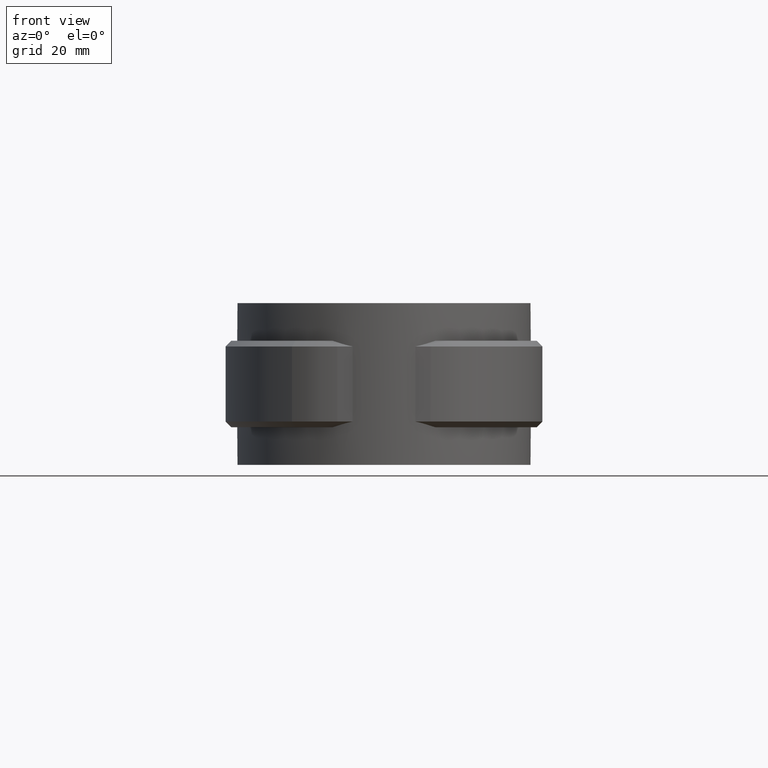
[diagram: clean part render]
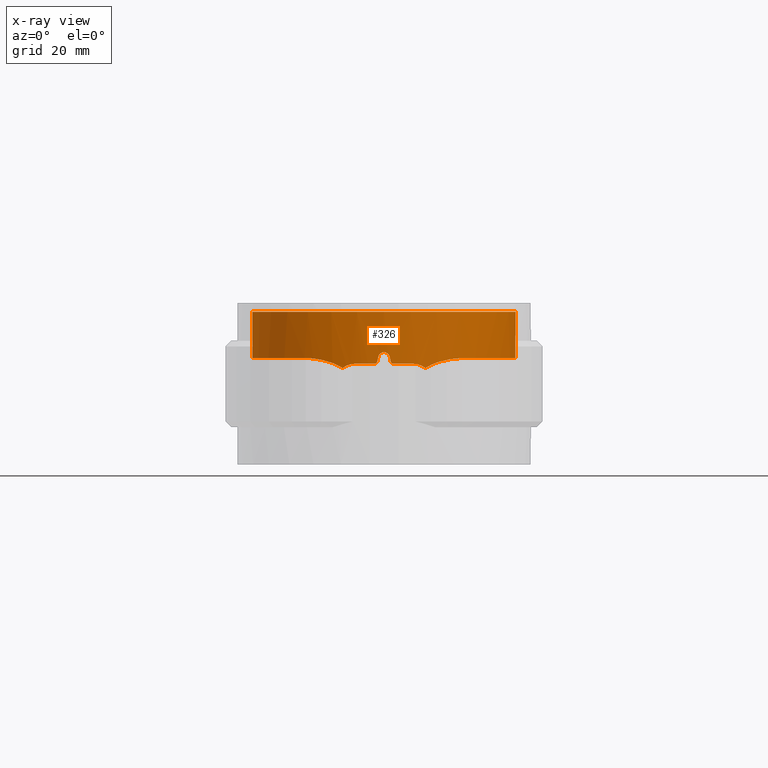
[diagram: x-ray — body ghosted, one internal face saturated and labeled with its STEP entity id]
A machine part, front view, then the same camera in x-ray: the body is ghosted and one INTERNAL B-rep face — a face not visible from any outside direction — is saturated and labeled: STEP entity #326.
In plain terms, the highlighted cylindrical surface (partial cylindrical patch) has radius 22.85 mm, axis along (0, 0, 1).
Its self-contained STEP definition (entity closure, byte-faithful):
#326 = ADVANCED_FACE( '', ( #566 ), #567, .F. );
#566 = FACE_OUTER_BOUND( '', #1260, .T. );
#567 = CYLINDRICAL_SURFACE( '', #1261, 22.8500000000000 );
#1260 = EDGE_LOOP( '', ( #2254, #2255, #2256, #2257, #2258, #2259, #2260, #2261, #2262, #2263, #2264, #2265, #2266, #2267, #2268, #2269 ) );
#1261 = AXIS2_PLACEMENT_3D( '', #2270, #2271, #2272 );
#2254 = ORIENTED_EDGE( '', *, *, #5250, .T. );
#2255 = ORIENTED_EDGE( '', *, *, #5219, .T. );
#2256 = ORIENTED_EDGE( '', *, *, #5223, .T. );
#2257 = ORIENTED_EDGE( '', *, *, #5254, .T. );
#2258 = ORIENTED_EDGE( '', *, *, #5255, .T. );
#2259 = ORIENTED_EDGE( '', *, *, #5256, .T. );
#2260 = ORIENTED_EDGE( '', *, *, #5257, .T. );
#2261 = ORIENTED_EDGE( '', *, *, #5258, .T. );
#2262 = ORIENTED_EDGE( '', *, *, #5259, .T. );
#2263 = ORIENTED_EDGE( '', *, *, #5260, .T. );
#2264 = ORIENTED_EDGE( '', *, *, #5251, .T. );
#2265 = ORIENTED_EDGE( '', *, *, #5243, .T. );
#2266 = ORIENTED_EDGE( '', *, *, #5261, .F. );
#2267 = ORIENTED_EDGE( '', *, *, #5210, .T. );
#2268 = ORIENTED_EDGE( '', *, *, #5262, .T. );
#2269 = ORIENTED_EDGE( '', *, *, #5239, .T. );
#2270 = CARTESIAN_POINT( '', ( 0.000000000000000, 0.000000000000000, 0.000000000000000 ) );
#2271 = DIRECTION( '', ( 0.000000000000000, 0.000000000000000, 1.00000000000000 ) );
#2272 = DIRECTION( '', ( 1.00000000000000, -6.12303176911189E-017, 0.000000000000000 ) );
#5210 = EDGE_CURVE( '', #5875, #5873, #5876, .T. );
#5219 = EDGE_CURVE( '', #5892, #5890, #5893, .T. );
#5223 = EDGE_CURVE( '', #5890, #5897, #5899, .T. );
#5239 = EDGE_CURVE( '', #5927, #5925, #5928, .T. );
#5243 = EDGE_CURVE( '', #5934, #5935, #5936, .T. );
#5250 = EDGE_CURVE( '', #5925, #5892, #5947, .T. );
#5251 = EDGE_CURVE( '', #5948, #5934, #5949, .T. );
#5254 = EDGE_CURVE( '', #5897, #5953, #5954, .T. );
#5255 = EDGE_CURVE( '', #5953, #5955, #5956, .T. );
#5256 = EDGE_CURVE( '', #5955, #5957, #5958, .T. );
#5257 = EDGE_CURVE( '', #5957, #5959, #5960, .T. );
#5258 = EDGE_CURVE( '', #5959, #5961, #5962, .T. );
#5259 = EDGE_CURVE( '', #5961, #5963, #5964, .T. );
#5260 = EDGE_CURVE( '', #5963, #5948, #5965, .T. );
#5261 = EDGE_CURVE( '', #5875, #5935, #5966, .T. );
#5262 = EDGE_CURVE( '', #5873, #5927, #5967, .T. );
#5873 = VERTEX_POINT( '', #7091 );
#5875 = VERTEX_POINT( '', #7093 );
#5876 = CIRCLE( '', #7094, 22.8500000000000 );
#5890 = VERTEX_POINT( '', #7138 );
#5892 = VERTEX_POINT( '', #7141 );
#5893 = B_SPLINE_CURVE_WITH_KNOTS( '', 3, ( #7142, #7143, #7144, #7145, #7146, #7147, #7148, #7149, #7150, #7151 ), .UNSPECIFIED., .F., .F., ( 4, 2, 2, 2, 4 ), ( 0.00877637653112455, 0.00937660491941818, 0.00997683330771180, 0.0105770616960054, 0.0111772900842991 ), .UNSPECIFIED. );
#5897 = VERTEX_POINT( '', #7177 );
#5899 = CIRCLE( '', #7180, 22.8500000000000 );
#5925 = VERTEX_POINT( '', #7444 );
#5927 = VERTEX_POINT( '', #7452 );
#5928 = B_SPLINE_CURVE_WITH_KNOTS( '', 3, ( #7453, #7454, #7455, #7456, #7457, #7458, #7459, #7460, #7461, #7462, #7463, #7464, #7465, #7466, #7467, #7468, #7469, #7470, #7471, #7472, #7473, #7474, #7475, #7476, #7477, #7478, #7479, #7480, #7481, #7482, #7483, #7484, #7485, #7486, #7487, #7488, #7489, #7490, #7491, #7492, #7493, #7494, #7495, #7496 ), .UNSPECIFIED., .F., .F., ( 4, 2, 2, 2, 2, 2, 2, 2, 2, 2, 2, 2, 2, 2, 2, 2, 2, 2, 2, 2, 2, 4 ), ( 9.34177181294034E-018, 0.00317004307811015, 0.00634008615622028, 0.00792510769527535, 0.00951012923433041, 0.0126801723124406, 0.0142651938514956, 0.0158502153905507, 0.0190202584686608, 0.0221903015467709, 0.0237753230858260, 0.0253603446248811, 0.0285303877029912, 0.0301154092420462, 0.0317004307811013, 0.0348704738592114, 0.0380405169373215, 0.0396255384763766, 0.0412105600154317, 0.0443806030935418, 0.0475506461716519, 0.0507206892497621 ), .UNSPECIFIED. );
#5934 = VERTEX_POINT( '', #7532 );
#5935 = VERTEX_POINT( '', #7533 );
#5936 = B_SPLINE_CURVE_WITH_KNOTS( '', 3, ( #7534, #7535, #7536, #7537, #7538, #7539, #7540, #7541, #7542, #7543, #7544, #7545, #7546, #7547, #7548, #7549, #7550, #7551, #7552, #7553, #7554, #7555, #7556, #7557, #7558, #7559, #7560, #7561, #7562, #7563, #7564, #7565, #7566, #7567, #7568, #7569, #7570, #7571, #7572, #7573, #7574, #7575, #7576, #7577 ), .UNSPECIFIED., .F., .F., ( 4, 2, 2, 2, 2, 2, 2, 2, 2, 2, 2, 2, 2, 2, 2, 2, 2, 2, 2, 2, 2, 4 ), ( 9.81307786677359E-018, 0.00317004304630908, 0.00634008609261816, 0.00792510761577270, 0.00951012913892724, 0.0126801721852363, 0.0142651937083909, 0.0158502152315454, 0.0190202582778545, 0.0221903013241636, 0.0237753228473181, 0.0253603443704726, 0.0285303874167817, 0.0301154089399363, 0.0317004304630908, 0.0348704735093999, 0.0380405165557090, 0.0396255380788635, 0.0412105596020181, 0.0443806026483272, 0.0475506456946363, 0.0507206887409454 ), .UNSPECIFIED. );
#5947 = B_SPLINE_CURVE_WITH_KNOTS( '', 3, ( #7676, #7677, #7678, #7679, #7680, #7681, #7682, #7683, #7684, #7685 ), .UNSPECIFIED., .F., .F., ( 4, 2, 2, 2, 4 ), ( 4.90653893338680E-018, 0.00193685903663415, 0.00387371807326829, 0.00581057710990243, 0.00774743614653657 ), .UNSPECIFIED. );
#5948 = VERTEX_POINT( '', #7686 );
#5949 = B_SPLINE_CURVE_WITH_KNOTS( '', 3, ( #7687, #7688, #7689, #7690, #7691, #7692, #7693, #7694, #7695, #7696 ), .UNSPECIFIED., .F., .F., ( 4, 2, 2, 2, 4 ), ( 1.22770241732585E-005, 0.00193683946452196, 0.00386140190487065, 0.00578596434521935, 0.00771052678556805 ), .UNSPECIFIED. );
#5953 = VERTEX_POINT( '', #7726 );
#5954 = B_SPLINE_CURVE_WITH_KNOTS( '', 3, ( #7727, #7728, #7729, #7730, #7731, #7732 ), .UNSPECIFIED., .F., .F., ( 4, 2, 4 ), ( 8.20849171219253E-018, 0.000336159592444283, 0.000672319184888557 ), .UNSPECIFIED. );
#5955 = VERTEX_POINT( '', #7733 );
#5956 = ELLIPSE( '', #7734, 104.094497545428, 22.8500000000000 );
#5957 = VERTEX_POINT( '', #7735 );
#5958 = B_SPLINE_CURVE_WITH_KNOTS( '', 3, ( #7736, #7737, #7738, #7739, #7740, #7741, #7742, #7743, #7744, #7745 ), .UNSPECIFIED., .F., .F., ( 4, 2, 2, 2, 4 ), ( 0.000000000000000, 0.000671637327123140, 0.00134327465424628, 0.00201491198136942, 0.00268654930849256 ), .UNSPECIFIED. );
#5959 = VERTEX_POINT( '', #7746 );
#5960 = ELLIPSE( '', #7747, 104.094550646447, 22.8500000000000 );
#5961 = VERTEX_POINT( '', #7748 );
#5962 = B_SPLINE_CURVE_WITH_KNOTS( '', 3, ( #7749, #7750, #7751, #7752, #7753, #7754 ), .UNSPECIFIED., .F., .F., ( 4, 2, 4 ), ( 4.33680868994202E-019, 0.000336166991338131, 0.000672333982676262 ), .UNSPECIFIED. );
#5963 = VERTEX_POINT( '', #7755 );
#5964 = CIRCLE( '', #7756, 22.8500000000000 );
#5965 = B_SPLINE_CURVE_WITH_KNOTS( '', 3, ( #7757, #7758, #7759, #7760, #7761, #7762 ), .UNSPECIFIED., .F., .F., ( 4, 2, 4 ), ( 3.46944695195361E-018, 0.00120286822902714, 0.00240573645805427 ), .UNSPECIFIED. );
#5966 = LINE( '', #7763, #7764 );
#5967 = LINE( '', #7765, #7766 );
#7091 = CARTESIAN_POINT( '', ( 5.97686116700199, 22.0544696284083, 0.000000000000000 ) );
#7093 = CARTESIAN_POINT( '', ( -5.97686116700201, 22.0544696284083, 0.000000000000000 ) );
#7094 = AXIS2_PLACEMENT_3D( '', #10862, #10863, #10864 );
#7138 = CARTESIAN_POINT( '', ( 5.00000000000000, -22.2962440783196, -9.00000000000000 ) );
#7141 = CARTESIAN_POINT( '', ( 7.17024469518741, -21.6958542355708, -9.75408704380942 ) );
#7142 = CARTESIAN_POINT( '', ( 7.17024469519022, -21.6958542355699, -9.75408704380517 ) );
#7143 = CARTESIAN_POINT( '', ( 7.01796001824560, -21.7461826709090, -9.63372816223457 ) );
#7144 = CARTESIAN_POINT( '', ( 6.85645411589327, -21.7977869176170, -9.52650941623306 ) );
#7145 = CARTESIAN_POINT( '', ( 6.51445896775813, -21.9024268497027, -9.33859490556102 ) );
#7146 = CARTESIAN_POINT( '', ( 6.33514685373399, -21.9550557524283, -9.25887470472623 ) );
#7147 = CARTESIAN_POINT( '', ( 5.96938883735207, -22.0573107077700, -9.13135107458249 ) );
#7148 = CARTESIAN_POINT( '', ( 5.78162313718466, -22.1073494578542, -9.08278654924921 ) );
#7149 = CARTESIAN_POINT( '', ( 5.39588101789661, -22.2046511837682, -9.01696099415415 ) );
#7150 = CARTESIAN_POINT( '', ( 5.19812709409454, -22.2518134797401, -8.99999999999996 ) );
#7151 = CARTESIAN_POINT( '', ( 5.00000000000000, -22.2962440783196, -8.99999999999996 ) );
#7177 = CARTESIAN_POINT( '', ( 1.64999999999995, -22.7903488345396, -9.00000000000000 ) );
#7180 = AXIS2_PLACEMENT_3D( '', #10872, #10873, #10874 );
#7444 = CARTESIAN_POINT( '', ( 13.7451875260167, -18.2535563623815, -7.99627160259138 ) );
#7452 = CARTESIAN_POINT( '', ( 5.97686116700199, 22.0544696284083, -7.99806293628719 ) );
#7453 = CARTESIAN_POINT( '', ( 5.97686116700198, 22.0544696284083, -7.99806293628720 ) );
#7454 = CARTESIAN_POINT( '', ( 7.01143548196948, 21.7740953028547, -7.99988755278500 ) );
#7455 = CARTESIAN_POINT( '', ( 8.01404762350000, 21.4246368353252, -8.00230956324210 ) );
#7456 = CARTESIAN_POINT( '', ( 9.95795472894794, 20.5931823779988, -8.00493905481669 ) );
#7457 = CARTESIAN_POINT( '', ( 10.8992422127147, 20.1111702307964, -8.00515454280294 ) );
#7458 = CARTESIAN_POINT( '', ( 12.2643926408483, 19.2870347738313, -8.00363431056714 ) );
#7459 = CARTESIAN_POINT( '', ( 12.7128878064341, 18.9945035227543, -8.00284112949908 ) );
#7460 = CARTESIAN_POINT( '', ( 13.5878610445616, 18.3787571040207, -8.00096519471322 ) );
#7461 = CARTESIAN_POINT( '', ( 14.0121140876056, 18.0572548725910, -7.99989040825878 ) );
#7462 = CARTESIAN_POINT( '', ( 15.2461850436421, 17.0529035816828, -7.99695436852238 ) );
#7463 = CARTESIAN_POINT( '', ( 16.0174960287352, 16.3303963988733, -7.99576079257590 ) );
#7464 = CARTESIAN_POINT( '', ( 17.0979388525817, 15.1678234558254, -7.99686273755623 ) );
#7465 = CARTESIAN_POINT( '', ( 17.4452867950226, 14.7671167835252, -7.99752471479612 ) );
#7466 = CARTESIAN_POINT( '', ( 18.1139169837869, 13.9388586678873, -7.99893911913194 ) );
#7467 = CARTESIAN_POINT( '', ( 18.4363869040529, 13.5095277098120, -7.99969322085147 ) );
#7468 = CARTESIAN_POINT( '', ( 19.3528943041518, 12.1954412025470, -8.00152579516512 ) );
#7469 = CARTESIAN_POINT( '', ( 19.8965015602484, 11.2857590722033, -8.00208610889800 ) );
#7470 = CARTESIAN_POINT( '', ( 20.8531823110764, 9.40127223697904, -8.00120365913698 ) );
#7471 = CARTESIAN_POINT( '', ( 21.2662520276613, 8.42646564670237, -7.99976228330781 ) );
#7472 = CARTESIAN_POINT( '', ( 21.7853527964981, 6.91411441776019, -7.99764423764790 ) );
#7473 = CARTESIAN_POINT( '', ( 21.9419239672955, 6.39990400198893, -7.99696693858724 ) );
#7474 = CARTESIAN_POINT( '', ( 22.2165583847864, 5.36948155380272, -7.99620273547804 ) );
#7475 = CARTESIAN_POINT( '', ( 22.3352128396471, 4.85191773757434, -7.99618901026058 ) );
#7476 = CARTESIAN_POINT( '', ( 22.6363537652718, 3.29231552430282, -7.99730974496167 ) );
#7477 = CARTESIAN_POINT( '', ( 22.7642766476596, 2.24339873368634, -7.99919040340763 ) );
#7478 = CARTESIAN_POINT( '', ( 22.8467180456463, 0.656225445339572, -8.00111405153713 ) );
#7479 = CARTESIAN_POINT( '', ( 22.8558934501877, 0.124859869719751, -8.00162434645790 ) );
#7480 = CARTESIAN_POINT( '', ( 22.8367899002396, -0.942593467893984, -8.00218138229479 ) );
#7481 = CARTESIAN_POINT( '', ( 22.8082982044997, -1.47902190764850, -8.00222512101892 ) );
#7482 = CARTESIAN_POINT( '', ( 22.6678380924190, -3.07009891870487, -8.00163221456186 ) );
#7483 = CARTESIAN_POINT( '', ( 22.5012258872981, -4.11511386099823, -8.00020197076186 ) );
#7484 = CARTESIAN_POINT( '', ( 22.0253389225093, -6.17444522761301, -7.99725528632869 ) );
#7485 = CARTESIAN_POINT( '', ( 21.7160731843294, -7.18876363629054, -7.99579791686863 ) );
#7486 = CARTESIAN_POINT( '', ( 21.1413121594365, -8.68638788384819, -7.99671454935107 ) );
#7487 = CARTESIAN_POINT( '', ( 20.9317676009025, -9.17966926231613, -7.99743481233078 ) );
#7488 = CARTESIAN_POINT( '', ( 20.4821229394220, -10.1433654453592, -7.99905703644062 ) );
#7489 = CARTESIAN_POINT( '', ( 20.2413902491186, -10.6154738524167, -7.99996020726915 ) );
#7490 = CARTESIAN_POINT( '', ( 19.4722333125456, -12.0030532422216, -8.00228544469425 ) );
#7491 = CARTESIAN_POINT( '', ( 18.8970748792681, -12.8899160043015, -8.00322899268585 ) );
#7492 = CARTESIAN_POINT( '', ( 17.6206061025088, -14.5864188261150, -8.00266976111400 ) );
#7493 = CARTESIAN_POINT( '', ( 16.9148082427623, -15.3996729535128, -8.00114093309447 ) );
#7494 = CARTESIAN_POINT( '', ( 15.4063552298102, -16.9087221130833, -7.99769043588948 ) );
#7495 = CARTESIAN_POINT( '', ( 14.6014655284411, -17.6087668493645, -7.99577809227568 ) );
#7496 = CARTESIAN_POINT( '', ( 13.7451875260167, -18.2535563623814, -7.99627160259135 ) );
#7532 = CARTESIAN_POINT( '', ( -13.7451875260167, -18.2535563623815, -7.99627160259138 ) );
#7533 = CARTESIAN_POINT( '', ( -5.97686116700199, 22.0544696284083, -7.99806293628720 ) );
#7534 = CARTESIAN_POINT( '', ( -13.7451875260167, -18.2535563623815, -7.99627160259142 ) );
#7535 = CARTESIAN_POINT( '', ( -14.6014626590747, -17.6087690100383, -7.99577809392949 ) );
#7536 = CARTESIAN_POINT( '', ( -15.4023885782134, -16.9117251612029, -7.99768192258079 ) );
#7537 = CARTESIAN_POINT( '', ( -16.8980576635274, -15.4173820424365, -8.00110206449429 ) );
#7538 = CARTESIAN_POINT( '', ( -17.5927878591592, -14.6200705381405, -8.00262879595025 ) );
#7539 = CARTESIAN_POINT( '', ( -18.5538737595713, -13.3476142180274, -8.00309218426568 ) );
#7540 = CARTESIAN_POINT( '', ( -18.8615277240534, -12.9093552327832, -8.00296404397960 ) );
#7541 = CARTESIAN_POINT( '', ( -19.4449927579842, -12.0125325079005, -8.00218297237273 ) );
#7542 = CARTESIAN_POINT( '', ( -19.7193742678155, -11.5563866712114, -8.00153467859180 ) );
#7543 = CARTESIAN_POINT( '', ( -20.4917933719758, -10.1653372809369, -7.99921031318955 ) );
#7544 = CARTESIAN_POINT( '', ( -20.9393430537976, -9.20792778083379, -7.99707160100254 ) );
#7545 = CARTESIAN_POINT( '', ( -21.5103351387830, -7.72708629450049, -7.99610943199217 ) );
#7546 = CARTESIAN_POINT( '', ( -21.6838838863340, -7.22599115546844, -7.99628155030870 ) );
#7547 = CARTESIAN_POINT( '', ( -21.9968060675225, -6.20856596991012, -7.99721535703736 ) );
#7548 = CARTESIAN_POINT( '', ( -22.1366207863939, -5.69014253708242, -7.99794865544021 ) );
#7549 = CARTESIAN_POINT( '', ( -22.4991120053981, -4.12956010977327, -8.00018055878469 ) );
#7550 = CARTESIAN_POINT( '', ( -22.6657057876294, -3.08300421862503, -8.00161499496216 ) );
#7551 = CARTESIAN_POINT( '', ( -22.8535063778009, -0.977946881608828, -8.00242400815246 ) );
#7552 = CARTESIAN_POINT( '', ( -22.8747089415520, 0.0805549129978776, -8.00179842017109 ) );
#7553 = CARTESIAN_POINT( '', ( -22.7945728596217, 1.67750490642551, -7.99988256730916 ) );
#7554 = CARTESIAN_POINT( '', ( -22.7488263826334, 2.21307448449684, -7.99909993040698 ) );
#7555 = CARTESIAN_POINT( '', ( -22.6208392431182, 3.27176288843334, -7.99763577880347 ) );
#7556 = CARTESIAN_POINT( '', ( -22.5386451866891, 3.79635526330946, -7.99695380675901 ) );
#7557 = CARTESIAN_POINT( '', ( -22.2385985378765, 5.35617359857218, -7.99581439911110 ) );
#7558 = CARTESIAN_POINT( '', ( -21.9675338496991, 6.37750653398686, -7.99689788653803 ) );
#7559 = CARTESIAN_POINT( '', ( -21.4542049025115, 7.88164007413646, -7.99899681372121 ) );
#7560 = CARTESIAN_POINT( '', ( -21.2652436323218, 8.37835717821458, -7.99973674000939 ) );
#7561 = CARTESIAN_POINT( '', ( -20.8507946196637, 9.36225504226127, -8.00094347261856 ) );
#7562 = CARTESIAN_POINT( '', ( -20.6249821364067, 9.84967442949806, -8.00140766923122 ) );
#7563 = CARTESIAN_POINT( '', ( -19.9032645714036, 11.2745934462192, -8.00209245863423 ) );
#7564 = CARTESIAN_POINT( '', ( -19.3602098795956, 12.1828406030148, -8.00153377176460 ) );
#7565 = CARTESIAN_POINT( '', ( -18.1530659394078, 13.9178133605811, -7.99913320625502 ) );
#7566 = CARTESIAN_POINT( '', ( -17.4889843485493, 14.7445441182418, -7.99729036923796 ) );
#7567 = CARTESIAN_POINT( '', ( -16.3988068278135, 15.9212922943994, -7.99613600533814 ) );
#7568 = CARTESIAN_POINT( '', ( -16.0209440561239, 16.3013672571772, -7.99608691237625 ) );
#7569 = CARTESIAN_POINT( '', ( -15.2453517644984, 17.0289304561245, -7.99702610753498 ) );
#7570 = CARTESIAN_POINT( '', ( -14.8464049878327, 17.3777565423572, -7.99790707172347 ) );
#7571 = CARTESIAN_POINT( '', ( -13.6166535096742, 18.3800952454065, -8.00082820811167 ) );
#7572 = CARTESIAN_POINT( '', ( -12.7530950942392, 18.9896796107435, -8.00305973268799 ) );
#7573 = CARTESIAN_POINT( '', ( -10.9375626850127, 20.0902734852668, -8.00514104661394 ) );
#7574 = CARTESIAN_POINT( '', ( -9.98007747159387, 20.5829714988920, -8.00496024213077 ) );
#7575 = CARTESIAN_POINT( '', ( -8.01883971137840, 21.4233254128867, -8.00232466419275 ) );
#7576 = CARTESIAN_POINT( '', ( -7.01143530155086, 21.7740953517490, -7.99988755246681 ) );
#7577 = CARTESIAN_POINT( '', ( -5.97686116700199, 22.0544696284083, -7.99806293628720 ) );
#7676 = CARTESIAN_POINT( '', ( 13.7451875260167, -18.2535563623814, -7.99627160259138 ) );
#7677 = CARTESIAN_POINT( '', ( 13.2277917529550, -18.6431627374196, -8.00648650956823 ) );
#7678 = CARTESIAN_POINT( '', ( 12.6966610756508, -19.0086940085891, -8.04288191382708 ) );
#7679 = CARTESIAN_POINT( '', ( 11.6080044819275, -19.6923813270429, -8.17431115934382 ) );
#7680 = CARTESIAN_POINT( '', ( 11.0500078105296, -20.0104897910928, -8.26950871493945 ) );
#7681 = CARTESIAN_POINT( '', ( 9.92639298903797, -20.5909955203573, -8.53304212090701 ) );
#7682 = CARTESIAN_POINT( '', ( 9.35588948381041, -20.8555785453974, -8.70238079946328 ) );
#7683 = CARTESIAN_POINT( '', ( 8.24024761362309, -21.3210258609358, -9.13870976108172 ) );
#7684 = CARTESIAN_POINT( '', ( 7.69167861809985, -21.5235259751088, -9.40348664637711 ) );
#7685 = CARTESIAN_POINT( '', ( 7.17024469518742, -21.6958542355708, -9.75408704380943 ) );
#7686 = CARTESIAN_POINT( '', ( -7.17024469519212, -21.6958542355694, -9.75408704380659 ) );
#7687 = CARTESIAN_POINT( '', ( -7.17024469519197, -21.6958542355693, -9.75408704380636 ) );
#7688 = CARTESIAN_POINT( '', ( -7.69174031474826, -21.5235055850350, -9.40344516294426 ) );
#7689 = CARTESIAN_POINT( '', ( -8.24029966391812, -21.3210038117202, -9.13869010300734 ) );
#7690 = CARTESIAN_POINT( '', ( -9.35581593698353, -20.8556095629891, -8.70240886487221 ) );
#7691 = CARTESIAN_POINT( '', ( -9.92636718308291, -20.5910013747996, -8.53305730762234 ) );
#7692 = CARTESIAN_POINT( '', ( -11.0496069818502, -20.0107043508477, -8.26959359487837 ) );
#7693 = CARTESIAN_POINT( '', ( -11.6070435510115, -19.6929623613240, -8.17444699709237 ) );
#7694 = CARTESIAN_POINT( '', ( -12.6964791998723, -19.0088306449086, -8.04288406344231 ) );
#7695 = CARTESIAN_POINT( '', ( -13.2277881242195, -18.6431654699090, -8.00648658121006 ) );
#7696 = CARTESIAN_POINT( '', ( -13.7451875260167, -18.2535563623814, -7.99627160259135 ) );
#7726 = CARTESIAN_POINT( '', ( 1.16219499999999, -22.8204251227267, -8.60975599999999 ) );
#7727 = CARTESIAN_POINT( '', ( 1.64999999999995, -22.7903488345396, -8.99999999999995 ) );
#7728 = CARTESIAN_POINT( '', ( 1.53663326388832, -22.7985564805016, -9.00000000048652 ) );
#7729 = CARTESIAN_POINT( '', ( 1.42653054457525, -22.8056002252954, -8.96146270835897 ) );
#7730 = CARTESIAN_POINT( '', ( 1.24917237601912, -22.8160022660762, -8.81972438130845 ) );
#7731 = CARTESIAN_POINT( '', ( 1.18714543685195, -22.8191544508263, -8.72064683267554 ) );
#7732 = CARTESIAN_POINT( '', ( 1.16219499999999, -22.8204251227267, -8.60975599999999 ) );
#7733 = CARTESIAN_POINT( '', ( 0.975609757981813, -22.8291630508026, -7.78048781325256 ) );
#7734 = AXIS2_PLACEMENT_3D( '', #10875, #10876, #10877 );
#7735 = CARTESIAN_POINT( '', ( -0.975610000000027, -22.8291630404599, -7.78048800000004 ) );
#7736 = CARTESIAN_POINT( '', ( 0.975609757981815, -22.8291630508026, -7.78048781325255 ) );
#7737 = CARTESIAN_POINT( '', ( 0.925759611057571, -22.8312934087867, -7.55893169483417 ) );
#7738 = CARTESIAN_POINT( '', ( 0.802000848113016, -22.8366098643602, -7.36098155301806 ) );
#7739 = CARTESIAN_POINT( '', ( 0.447419710234552, -22.8463076023295, -7.07730528269426 ) );
#7740 = CARTESIAN_POINT( '', ( 0.227103399425461, -22.8500000104525, -6.99999978043801 ) );
#7741 = CARTESIAN_POINT( '', ( -0.227105502769266, -22.8499999895475, -7.00000021269580 ) );
#7742 = CARTESIAN_POINT( '', ( -0.447456633074006, -22.8463067278190, -7.07732824922196 ) );
#7743 = CARTESIAN_POINT( '', ( -0.801998773867362, -22.8366097857538, -7.36098614709214 ) );
#7744 = CARTESIAN_POINT( '', ( -0.925759891921149, -22.8312933973134, -7.55893185619929 ) );
#7745 = CARTESIAN_POINT( '', ( -0.975610000000027, -22.8291630404599, -7.78048800000004 ) );
#7746 = CARTESIAN_POINT( '', ( -1.16219512100914, -22.8204251165639, -8.60975609337373 ) );
#7747 = AXIS2_PLACEMENT_3D( '', #10878, #10879, #10880 );
#7748 = CARTESIAN_POINT( '', ( -1.65000000000003, -22.7903488345396, -9.00000000000000 ) );
#7749 = CARTESIAN_POINT( '', ( -1.16219512100916, -22.8204251165639, -8.60975609337372 ) );
#7750 = CARTESIAN_POINT( '', ( -1.18714554844780, -22.8191544450104, -8.72064688643459 ) );
#7751 = CARTESIAN_POINT( '', ( -1.24916474685743, -22.8160027002550, -8.81971695351357 ) );
#7752 = CARTESIAN_POINT( '', ( -1.42653137035029, -22.8056001901341, -8.96146462712579 ) );
#7753 = CARTESIAN_POINT( '', ( -1.53663329736968, -22.7985564780776, -8.99999999999994 ) );
#7754 = CARTESIAN_POINT( '', ( -1.65000000000003, -22.7903488345396, -8.99999999999994 ) );
#7755 = CARTESIAN_POINT( '', ( -5.00000000000005, -22.2962440783196, -9.00000000000000 ) );
#7756 = AXIS2_PLACEMENT_3D( '', #10881, #10882, #10883 );
#7757 = CARTESIAN_POINT( '', ( -5.00000000000005, -22.2962440783196, -8.99999999999997 ) );
#7758 = CARTESIAN_POINT( '', ( -5.39698853567081, -22.2072182015225, -8.99999999999997 ) );
#7759 = CARTESIAN_POINT( '', ( -5.78043815525076, -22.1101147685204, -9.06561690495290 ) );
#7760 = CARTESIAN_POINT( '', ( -6.52180220347939, -21.9028933331310, -9.32380904050121 ) );
#7761 = CARTESIAN_POINT( '', ( -6.86244019934732, -21.7975802856028, -9.51081237162270 ) );
#7762 = CARTESIAN_POINT( '', ( -7.17024469519209, -21.6958542355693, -9.75408704380656 ) );
#7763 = CARTESIAN_POINT( '', ( -5.97686116700201, 22.0544696284083, 0.000000000000000 ) );
#7764 = VECTOR( '', #10884, 1000.00000000000 );
#7765 = CARTESIAN_POINT( '', ( 5.97686116700199, 22.0544696284083, 0.000000000000000 ) );
#7766 = VECTOR( '', #10885, 1000.00000000000 );
#10862 = CARTESIAN_POINT( '', ( 0.000000000000000, 0.000000000000000, 0.000000000000000 ) );
#10863 = DIRECTION( '', ( 0.000000000000000, 0.000000000000000, 1.00000000000000 ) );
#10864 = DIRECTION( '', ( 1.00000000000000, -6.12303176911189E-017, 0.000000000000000 ) );
#10872 = CARTESIAN_POINT( '', ( 0.000000000000000, 0.000000000000000, -9.00000000000000 ) );
#10873 = DIRECTION( '', ( 6.12303176911189E-017, 0.000000000000000, -1.00000000000000 ) );
#10874 = DIRECTION( '', ( -1.00000000000000, 0.000000000000000, -6.12303176911189E-017 ) );
#10875 = CARTESIAN_POINT( '', ( 0.000000000000000, 0.000000000000000, -3.44444212055029 ) );
#10876 = DIRECTION( '', ( -0.975609781292647, 0.000000000000000, -0.219512083143762 ) );
#10877 = DIRECTION( '', ( 0.219512083143762, 0.000000000000000, -0.975609781292647 ) );
#10878 = CARTESIAN_POINT( '', ( 0.000000000000000, 0.000000000000000, -3.44443890776446 ) );
#10879 = DIRECTION( '', ( 0.975609806487711, 0.000000000000000, -0.219511971165610 ) );
#10880 = DIRECTION( '', ( -0.219511971165610, 0.000000000000000, -0.975609806487711 ) );
#10881 = CARTESIAN_POINT( '', ( 0.000000000000000, 0.000000000000000, -9.00000000000000 ) );
#10882 = DIRECTION( '', ( 6.12303176911189E-017, 0.000000000000000, -1.00000000000000 ) );
#10883 = DIRECTION( '', ( -1.00000000000000, 0.000000000000000, -6.12303176911189E-017 ) );
#10884 = DIRECTION( '', ( 0.000000000000000, 0.000000000000000, -1.00000000000000 ) );
#10885 = DIRECTION( '', ( 0.000000000000000, 0.000000000000000, -1.00000000000000 ) );